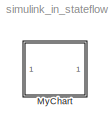
MODEL simulink_in_stateflow
KIND model
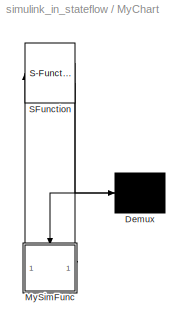
BLOCK [SubSystem] MyChart
  ErrorFcn = Stateflow.Translate.translate
  PermitHierarchicalResolution = ExplicitOnly
  Ports = []
  RequestExecContextInheritance = off
  SFBlockType = Chart
  SID = 1
  TreatAsAtomicUnit = on
  Variant = off
BLOCK [Demux] MyChart/ Demux 
  Outputs = 1
  Ports = [1, 1]
  SID = 1::74
BLOCK [S-Function] MyChart/ SFunction 
  EnableBusSupport = off
  FunctionName = sf_sfun
  PortCounts = [1 2]
  Ports = [1, 2]
  SFunctionDeploymentMode = off
  SID = 1::73
  Tag = Stateflow S-Function simulink_in_stateflow 3
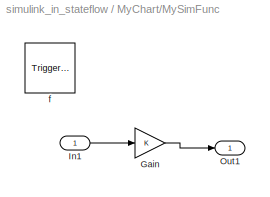
BLOCK [SubSystem] MyChart/MySimFunc
  Ports = [1, 1, 0, 1]
  PreDeleteFcn = Stateflow.SLINSF.SimulinkMan.removePreDeleteFcn
  RequestExecContextInheritance = off
  SID = 1::77
  UndoDeleteFcn = Stateflow.SLINSF.SimulinkMan.restorePreDeleteFcn
  Variant = off
BLOCK [Gain] MyChart/MySimFunc/Gain
  OutDataTypeStr = Inherit: Inherit via internal rule
  ParamDataTypeStr = Inherit: Inherit via internal rule
  SID = 1::81
  SaturateOnIntegerOverflow = off
BLOCK [Inport] MyChart/MySimFunc/In1
  IconDisplay = Port number
  SID = 1::79
BLOCK [Outport] MyChart/MySimFunc/Out1
  IconDisplay = Port number
  SID = 1::80
BLOCK [TriggerPort] MyChart/MySimFunc/f
  CopyFcn = Stateflow.SLINSF.SimulinkMan.removeBlockPreDeleteFcn
  Ports = []
  PreDeleteFcn = Stateflow.SLINSF.SimulinkMan.unsafePredeleteFcn
  SID = 1::78
  StatesWhenEnabling = held
  TriggerType = function-call
LINE MyChart/ Demux :1 -> MyChart/MySimFunc:trigger
LINE MyChart/ SFunction :1 -> MyChart/ Demux :1
LINE MyChart/ SFunction :2 -> MyChart/MySimFunc:1
LINE MyChart/MySimFunc/Gain:1 -> MyChart/MySimFunc/Out1:1
LINE MyChart/MySimFunc/In1:1 -> MyChart/MySimFunc/Gain:1
LINE MyChart/MySimFunc:1 -> MyChart/ SFunction :1
CHART MyChart states=3 transitions=1
  STATE_LABEL 'MyState1'
  STATE_LABEL 'MyState2'
  STATE_LABEL 'Out1 = MySimFunc(In1)'
